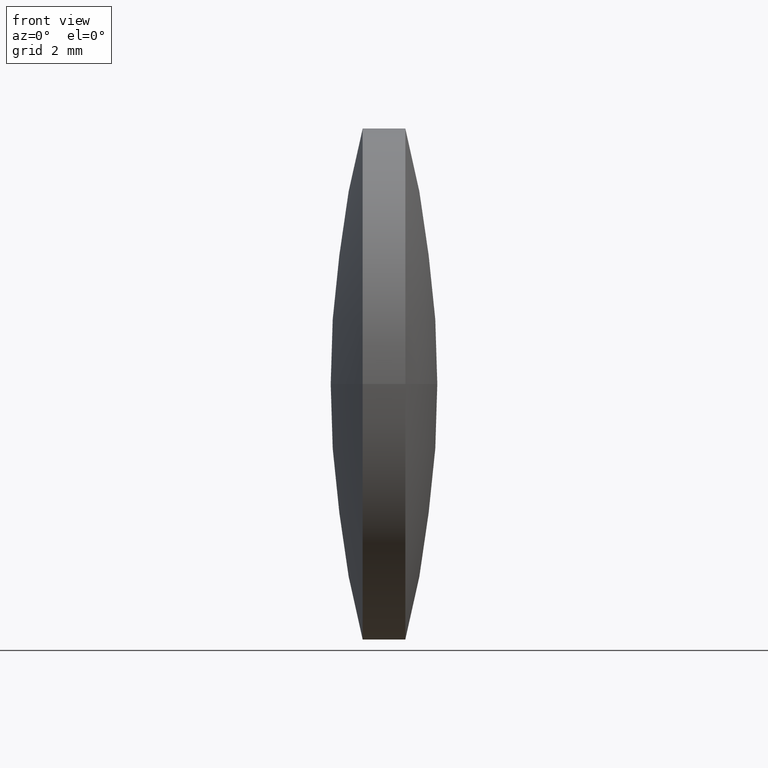
[diagram: clean part render]
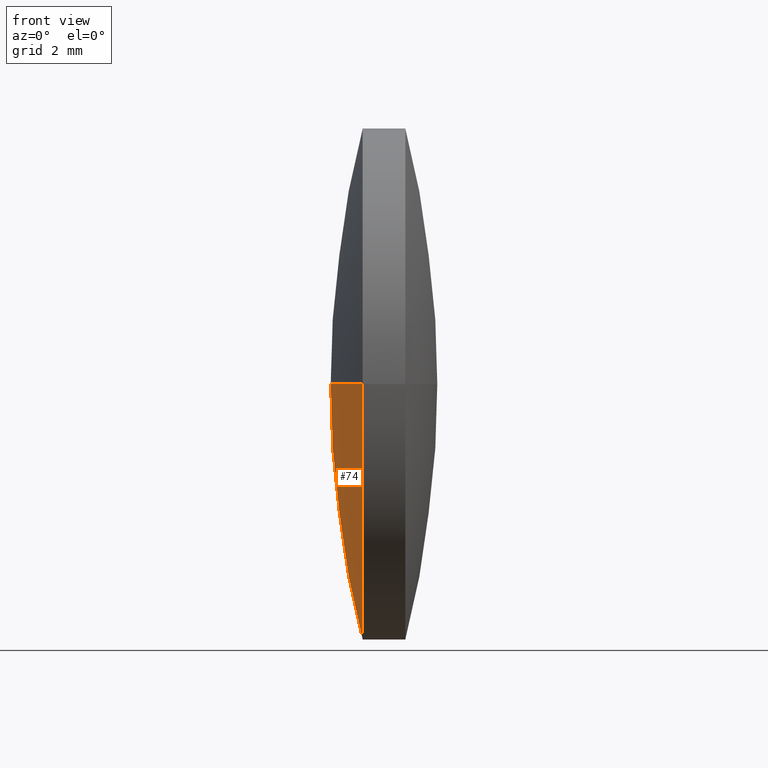
[diagram: same view with one face highlighted and labeled with its STEP entity id]
A machine part, front view. The second image highlights one B-rep face of the part: STEP entity #74.
In plain terms, the highlighted spherical surface has radius 25.4301 mm.
Its self-contained STEP definition (entity closure, byte-faithful):
#2 = DIRECTION ( 'NONE',  ( 2.182894663866003600E-015, 1.000000000000000000, 0.0000000000000000000 ) ) ;
#3 = DIRECTION ( 'NONE',  ( 0.0000000000000000000, -0.0000000000000000000, 1.000000000000000000 ) ) ;
#5 = AXIS2_PLACEMENT_3D ( 'NONE', #32, #196, #224 ) ;
#31 = CIRCLE ( 'NONE', #5, 6.249999999999998200 ) ;
#32 = CARTESIAN_POINT ( 'NONE',  ( 42.02832370800324200, 23.92525247203977700, 0.0000000000000000000 ) ) ;
#40 = CIRCLE ( 'NONE', #115, 25.43006410256420900 ) ;
#43 = AXIS2_PLACEMENT_3D ( 'NONE', #166, #121, #96 ) ;
#47 = EDGE_CURVE ( 'NONE', #160, #117, #50, .T. ) ;
#50 = CIRCLE ( 'NONE', #43, 25.43006410256420900 ) ;
#64 = FACE_OUTER_BOUND ( 'NONE', #180, .T. ) ;
#74 = ADVANCED_FACE ( 'NONE', ( #64 ), #188, .T. ) ;
#95 = CARTESIAN_POINT ( 'NONE',  ( 41.24832370800325500, 23.92525247203982300, 0.0000000000000000000 ) ) ;
#96 = DIRECTION ( 'NONE',  ( -1.000000000000000000, 0.0000000000000000000, 0.0000000000000000000 ) ) ;
#100 = DIRECTION ( 'NONE',  ( 0.0000000000000000000, -1.000000000000000000, 1.224646799147353200E-016 ) ) ;
#101 = CARTESIAN_POINT ( 'NONE',  ( 42.02832370800322800, 17.67525247203977700, 7.654042494670959600E-016 ) ) ;
#115 = AXIS2_PLACEMENT_3D ( 'NONE', #265, #145, #100 ) ;
#117 = VERTEX_POINT ( 'NONE', #164 ) ;
#121 = DIRECTION ( 'NONE',  ( 0.0000000000000000000, 0.0000000000000000000, -1.000000000000000000 ) ) ;
#128 = AXIS2_PLACEMENT_3D ( 'NONE', #211, #3, #2 ) ;
#145 = DIRECTION ( 'NONE',  ( 2.424976506190284800E-031, 1.224646799147353200E-016, 1.000000000000000000 ) ) ;
#158 = EDGE_CURVE ( 'NONE', #253, #117, #31, .T. ) ;
#160 = VERTEX_POINT ( 'NONE', #95 ) ;
#164 = CARTESIAN_POINT ( 'NONE',  ( 42.02832370800324900, 30.17525247203977700, 0.0000000000000000000 ) ) ;
#166 = CARTESIAN_POINT ( 'NONE',  ( 66.67838781056747200, 23.92525247203976900, 0.0000000000000000000 ) ) ;
#176 = ORIENTED_EDGE ( 'NONE', *, *, #158, .F. ) ;
#180 = EDGE_LOOP ( 'NONE', ( #221, #231, #176 ) ) ;
#188 = SPHERICAL_SURFACE ( 'NONE', #128, 25.43006410256420900 ) ;
#196 = DIRECTION ( 'NONE',  ( 1.000000000000000000, -1.980143587423449700E-015, -0.0000000000000000000 ) ) ;
#199 = EDGE_CURVE ( 'NONE', #160, #253, #40, .T. ) ;
#211 = CARTESIAN_POINT ( 'NONE',  ( 66.67838781056747200, 23.92525247203976900, 0.0000000000000000000 ) ) ;
#221 = ORIENTED_EDGE ( 'NONE', *, *, #199, .F. ) ;
#224 = DIRECTION ( 'NONE',  ( 2.220446049250313900E-015, 1.000000000000000000, 0.0000000000000000000 ) ) ;
#231 = ORIENTED_EDGE ( 'NONE', *, *, #47, .T. ) ;
#253 = VERTEX_POINT ( 'NONE', #101 ) ;
#265 = CARTESIAN_POINT ( 'NONE',  ( 66.67838781056747200, 23.92525247203976900, 0.0000000000000000000 ) ) ;